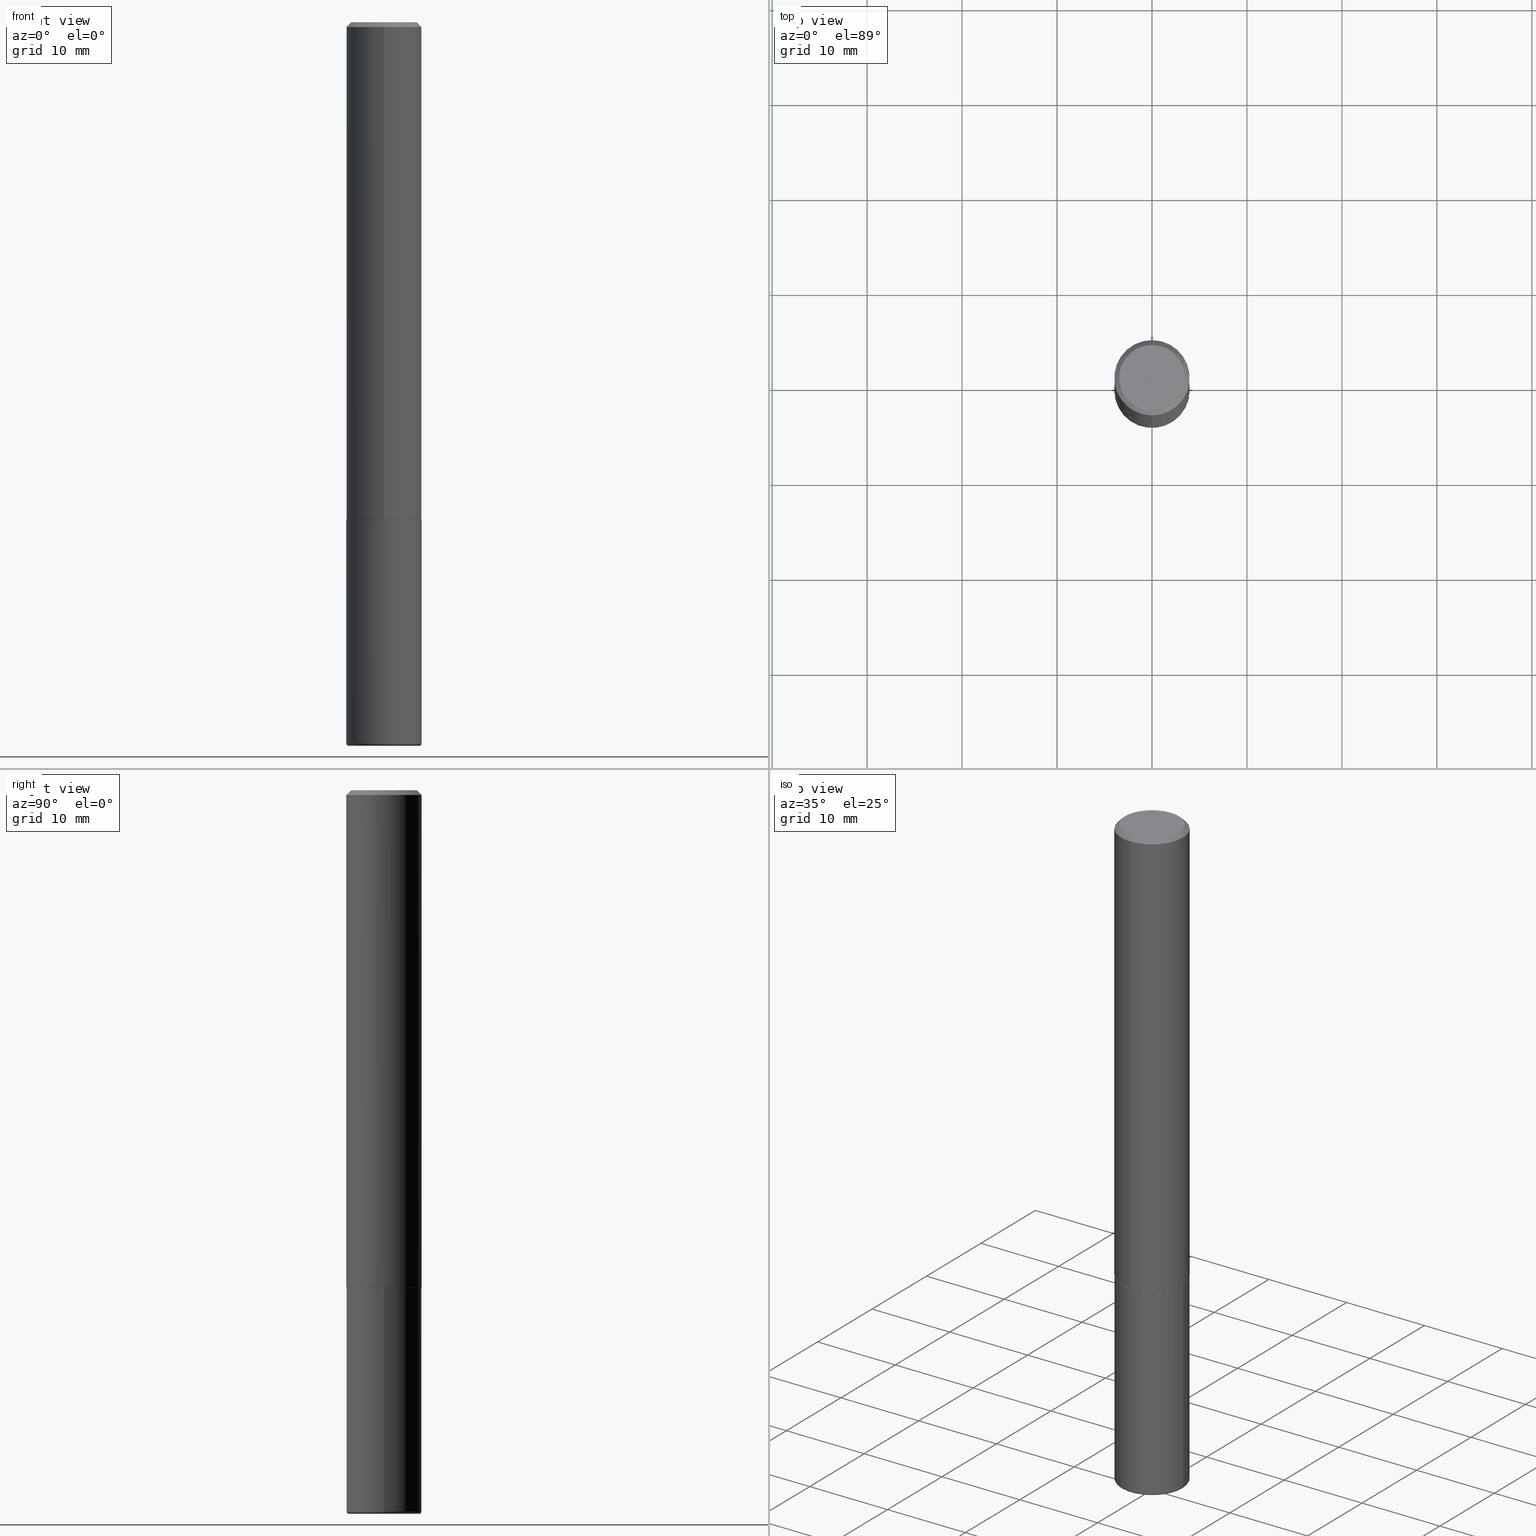
[diagram: canonical four-view strip — front | top / right | iso, engineering-drawing reading convention]
A machine part, canonical four-view strip (front | top / right | iso — engineering-drawing reading convention). The complete STEP part file that produces these views, byte-faithful:
ISO-10303-21;
HEADER;
FILE_DESCRIPTION (( 'STEP AP203' ),
    '1' );
FILE_NAME ('37453.STEP',
    '2024-03-02T01:37:50',
    ( '' ),
    ( '' ),
    'SwSTEP 2.0',
    'SolidWorks 2023',
    '' );
FILE_SCHEMA (( 'CONFIG_CONTROL_DESIGN' ));
ENDSEC;

DATA;
#1 = CARTESIAN_POINT ( 'NONE',  ( 5.043175630159490166E-29, -7.202044912408575044E-15, -2.062500000000000444 ) ) ;
#2 = EDGE_CURVE ( 'NONE', #327, #32, #267, .T. ) ;
#3 = CARTESIAN_POINT ( 'NONE',  ( 0.1562500000000000278, -1.153061712152948940E-14, -2.990000000000000657 ) ) ;
#4 = EDGE_CURVE ( 'NONE', #327, #115, #227, .T. ) ;
#5 = FACE_OUTER_BOUND ( 'NONE', #231, .T. ) ;
#6 = AXIS2_PLACEMENT_3D ( 'NONE', #92, #224, #94 ) ;
#7 = APPROVAL_PERSON_ORGANIZATION ( #120, #365, #189 ) ;
#8 = VERTEX_POINT ( 'NONE', #60 ) ;
#9 = ORIENTED_EDGE ( 'NONE', *, *, #188, .F. ) ;
#10 = ORIENTED_EDGE ( 'NONE', *, *, #360, .T. ) ;
#11 = ADVANCED_FACE ( 'NONE', ( #166 ), #22, .T. ) ;
#12 = ORIENTED_EDGE ( 'NONE', *, *, #67, .F. ) ;
#13 = LOCAL_TIME ( 20, 37, 50.00000000000000000, #38 ) ;
#14 = ADVANCED_FACE ( 'NONE', ( #5 ), #388, .T. ) ;
#15 = LINE ( 'NONE', #213, #330 ) ;
#16 = CC_DESIGN_PERSON_AND_ORGANIZATION_ASSIGNMENT ( #131, #335, ( #400 ) ) ;
#17 = ADVANCED_FACE ( 'NONE', ( #128 ), #159, .T. ) ;
#18 = DIRECTION ( 'NONE',  ( -2.445176063107630933E-29, 3.491900563592034843E-15, 1.000000000000000000 ) ) ;
#19 = DIRECTION ( 'NONE',  ( 7.105427357601001859E-15, 1.000000000000000000, -3.491481338843145583E-15 ) ) ;
#20 = CARTESIAN_POINT ( 'NONE',  ( -0.1562500000000000000, 1.110223024625156540E-15, -7.685836078523291160E-30 ) ) ;
#21 = DIRECTION ( 'NONE',  ( -6.982962677686265922E-15, -1.000000000000000000, 3.519288880726909138E-15 ) ) ;
#22 = CONICAL_SURFACE ( 'NONE', #417, 0.1562500000000000000, 0.7853981633974469467 ) ;
#23 = TOROIDAL_SURFACE ( 'NONE', #51, 0.1462500000000000189, 0.01000000000000008174 ) ;
#24 = DIRECTION ( 'NONE',  ( -2.445176063107630933E-29, 3.491900563592034843E-15, 1.000000000000000000 ) ) ;
#25 = ORIENTED_EDGE ( 'NONE', *, *, #401, .F. ) ;
#26 = DIRECTION ( 'NONE',  ( -2.445468806185136877E-29, 3.491481338843145188E-15, 1.000000000000000000 ) ) ;
#27 = COORDINATED_UNIVERSAL_TIME_OFFSET ( 5, 0, .BEHIND. ) ;
#28 =( NAMED_UNIT ( * ) SI_UNIT ( $, .STERADIAN. ) SOLID_ANGLE_UNIT ( ) );
#29 = DIRECTION ( 'NONE',  ( 1.000000000000000000, -6.982962677686269077E-15, 0.000000000000000000 ) ) ;
#30 =( NAMED_UNIT ( * ) PLANE_ANGLE_UNIT ( ) SI_UNIT ( $, .RADIAN. ) );
#31 = APPROVAL_STATUS ( 'not_yet_approved' ) ;
#32 = VERTEX_POINT ( 'NONE', #3 ) ;
#33 = DIRECTION ( 'NONE',  ( 1.000000000000000000, -6.982962677686262766E-15, 0.000000000000000000 ) ) ;
#34 = SHAPE_DEFINITION_REPRESENTATION ( #250, #269 ) ;
#35 = DIRECTION ( 'NONE',  ( -6.982962677686265922E-15, -1.000000000000000000, 3.519288880726909138E-15 ) ) ;
#36 = APPROVAL ( #31, 'UNSPECIFIED' ) ;
#37 = ORIENTED_EDGE ( 'NONE', *, *, #229, .F. ) ;
#38 = COORDINATED_UNIVERSAL_TIME_OFFSET ( 5, 0, .BEHIND. ) ;
#39 = CARTESIAN_POINT ( 'NONE',  ( 0.000000000000000000, 0.000000000000000000, 0.000000000000000000 ) ) ;
#40 = ORIENTED_EDGE ( 'NONE', *, *, #198, .T. ) ;
#41 = APPLICATION_CONTEXT ( 'configuration controlled 3d designs of mechanical parts and assemblies' ) ;
#42 = DATE_AND_TIME ( #257, #201 ) ;
#43 = ORIENTED_EDGE ( 'NONE', *, *, #127, .F. ) ;
#44 = ORIENTED_EDGE ( 'NONE', *, *, #235, .F. ) ;
#45 = AXIS2_PLACEMENT_3D ( 'NONE', #116, #383, #349 ) ;
#46 = CIRCLE ( 'NONE', #111, 0.1362500000000001210 ) ;
#47 = VECTOR ( 'NONE', #185, 39.37007874015748143 ) ;
#48 = DIRECTION ( 'NONE',  ( 6.982962677686265133E-15, 1.000000000000000000, -3.496765431890256920E-15 ) ) ;
#49 = AXIS2_PLACEMENT_3D ( 'NONE', #190, #161, #133 ) ;
#50 = CARTESIAN_POINT ( 'NONE',  ( 5.043175630159489045E-29, -7.202044912408573467E-15, -2.062500000000000000 ) ) ;
#51 = AXIS2_PLACEMENT_3D ( 'NONE', #88, #282, #377 ) ;
#52 = DIRECTION ( 'NONE',  ( -2.445176063107630933E-29, 3.491900563592034843E-15, 1.000000000000000000 ) ) ;
#53 = CARTESIAN_POINT ( 'NONE',  ( -0.1562500000000000278, -9.329306178515851319E-15, -2.990000000000000657 ) ) ;
#54 = CARTESIAN_POINT ( 'NONE',  ( 2.190428889620163364E-45, -3.128101894001013777E-31, -8.958164292007245599E-17 ) ) ;
#55 = DIRECTION ( 'NONE',  ( -6.982962677686265922E-15, -1.000000000000000000, 3.491900563592034843E-15 ) ) ;
#56 = MECHANICAL_CONTEXT ( 'NONE', #41, 'mechanical' ) ;
#57 = EDGE_LOOP ( 'NONE', ( #43, #40, #153, #150 ) ) ;
#58 = DIRECTION ( 'NONE',  ( 1.000000000000000000, -6.982962677686262766E-15, 0.000000000000000000 ) ) ;
#59 = EDGE_CURVE ( 'NONE', #264, #71, #89, .T. ) ;
#60 = CARTESIAN_POINT ( 'NONE',  ( -1.003347832174086672E-15, -0.1362500000000001210, 3.861898088693426789E-16 ) ) ;
#61 = ADVANCED_FACE ( 'NONE', ( #418 ), #246, .T. ) ;
#62 = CALENDAR_DATE ( 2024, 1, 3 ) ;
#63 = LINE ( 'NONE', #193, #64 ) ;
#64 = VECTOR ( 'NONE', #291, 39.37007874015748143 ) ;
#65 = CC_DESIGN_SECURITY_CLASSIFICATION ( #410, ( #400 ) ) ;
#66 = DIRECTION ( 'NONE',  ( -6.982962677686265922E-15, -1.000000000000000000, 3.491900563592035238E-15 ) ) ;
#67 = EDGE_CURVE ( 'NONE', #301, #108, #63, .T. ) ;
#68 = EDGE_LOOP ( 'NONE', ( #329, #182, #163, #212 ) ) ;
#69 = ORIENTED_EDGE ( 'NONE', *, *, #160, .F. ) ;
#70 =( GEOMETRIC_REPRESENTATION_CONTEXT ( 3 ) GLOBAL_UNCERTAINTY_ASSIGNED_CONTEXT ( ( #350 ) ) GLOBAL_UNIT_ASSIGNED_CONTEXT ( ( #147, #30, #28 ) ) REPRESENTATION_CONTEXT ( 'NONE', 'WORKASPACE' ) );
#71 = VERTEX_POINT ( 'NONE', #321 ) ;
#72 = ADVANCED_FACE ( 'NONE', ( #262 ), #392, .T. ) ;
#73 = DATE_AND_TIME ( #367, #13 ) ;
#74 = EDGE_CURVE ( 'NONE', #142, #108, #255, .T. ) ;
#75 = AXIS2_PLACEMENT_3D ( 'NONE', #54, #274, #243 ) ;
#76 = LOCAL_TIME ( 20, 37, 50.00000000000000000, #27 ) ;
#77 = PERSON_AND_ORGANIZATION ( #273, #124 ) ;
#78 = DIRECTION ( 'NONE',  ( 2.445176063107630933E-29, -3.491900563592034843E-15, -1.000000000000000000 ) ) ;
#79 = CARTESIAN_POINT ( 'NONE',  ( 5.043779412756844791E-29, -7.201180261363988578E-15, -2.062500000000000000 ) ) ;
#80 = AXIS2_PLACEMENT_3D ( 'NONE', #148, #18, #415 ) ;
#81 = EDGE_CURVE ( 'NONE', #375, #8, #226, .T. ) ;
#82 = DIRECTION ( 'NONE',  ( -1.000000000000000000, 7.105427357601074434E-15, 0.000000000000000000 ) ) ;
#83 = DIRECTION ( 'NONE',  ( -6.982962677686265922E-15, -1.000000000000000000, 3.491900563592034843E-15 ) ) ;
#84 = DIRECTION ( 'NONE',  ( 2.438088387897960049E-29, -3.491481338843145188E-15, -1.000000000000000000 ) ) ;
#85 = PRODUCT ( '37453', '37453', '', ( #56 ) ) ;
#86 = LINE ( 'NONE', #277, #385 ) ;
#87 = ADVANCED_FACE ( 'NONE', ( #379 ), #409, .T. ) ;
#88 = CARTESIAN_POINT ( 'NONE',  ( 7.311951730493558245E-29, -1.043952920314100628E-14, -2.990000000000000213 ) ) ;
#89 = CIRCLE ( 'NONE', #260, 0.1562500000000000000 ) ;
#90 = CC_DESIGN_DATE_AND_TIME_ASSIGNMENT ( #286, #413, ( #172 ) ) ;
#91 = PRODUCT_RELATED_PRODUCT_CATEGORY ( 'detail', '', ( #85 ) ) ;
#92 = CARTESIAN_POINT ( 'NONE',  ( 0.000000000000000000, 0.000000000000000000, 0.000000000000000000 ) ) ;
#93 = FACE_OUTER_BOUND ( 'NONE', #368, .T. ) ;
#94 = DIRECTION ( 'NONE',  ( -6.982962677686265922E-15, -1.000000000000000000, 3.491900563592035238E-15 ) ) ;
#95 = CARTESIAN_POINT ( 'NONE',  ( 0.000000000000000000, 0.000000000000000000, 0.000000000000000000 ) ) ;
#96 = CIRCLE ( 'NONE', #293, 0.1562500000000000000 ) ;
#97 = CIRCLE ( 'NONE', #247, 0.1562500000000002776 ) ;
#98 = EDGE_LOOP ( 'NONE', ( #244, #298, #138, #348 ) ) ;
#99 = DIRECTION ( 'NONE',  ( 2.445176063107630933E-29, -3.491900563592034843E-15, -1.000000000000000000 ) ) ;
#100 = ORIENTED_EDGE ( 'NONE', *, *, #127, .T. ) ;
#101 = LINE ( 'NONE', #223, #132 ) ;
#102 = EDGE_CURVE ( 'NONE', #167, #264, #314, .T. ) ;
#103 = CARTESIAN_POINT ( 'NONE',  ( 4.890352126215269679E-31, -6.983801127184080238E-17, -0.02000000000000003511 ) ) ;
#104 = EDGE_LOOP ( 'NONE', ( #25, #241 ) ) ;
#105 = SECURITY_CLASSIFICATION_LEVEL ( 'unclassified' ) ;
#106 = AXIS2_PLACEMENT_3D ( 'NONE', #194, #162, #129 ) ;
#107 = CC_DESIGN_PERSON_AND_ORGANIZATION_ASSIGNMENT ( #355, #384, ( #172 ) ) ;
#108 = VERTEX_POINT ( 'NONE', #285 ) ;
#109 = CC_DESIGN_DATE_AND_TIME_ASSIGNMENT ( #73, #333, ( #410 ) ) ;
#110 = CLOSED_SHELL ( 'NONE', ( #177, #204, #11, #352, #14, #61, #119, #146 ) ) ;
#111 = AXIS2_PLACEMENT_3D ( 'NONE', #346, #52, #55 ) ;
#112 = ORIENTED_EDGE ( 'NONE', *, *, #214, .T. ) ;
#113 = DIRECTION ( 'NONE',  ( -2.445468806185136597E-29, 3.491481338843145583E-15, 1.000000000000000000 ) ) ;
#114 = DIRECTION ( 'NONE',  ( -2.445176063107630933E-29, 3.491900563592034843E-15, 1.000000000000000000 ) ) ;
#115 = VERTEX_POINT ( 'NONE', #347 ) ;
#116 = CARTESIAN_POINT ( 'NONE',  ( 7.336406418555409790E-29, -1.047444401652943635E-14, -3.000000000000000444 ) ) ;
#117 = CARTESIAN_POINT ( 'NONE',  ( 7.336406418555409790E-29, -1.047444401652943635E-14, -3.000000000000000444 ) ) ;
#118 = CARTESIAN_POINT ( 'NONE',  ( 5.043175630159490166E-29, -7.202044912408575044E-15, -2.062500000000000444 ) ) ;
#119 = ADVANCED_FACE ( 'NONE', ( #374 ), #340, .F. ) ;
#120 = PERSON_AND_ORGANIZATION ( #273, #124 ) ;
#121 = EDGE_LOOP ( 'NONE', ( #135, #100, #208, #263 ) ) ;
#122 = APPROVAL_ROLE ( '' ) ;
#123 = AXIS2_PLACEMENT_3D ( 'NONE', #1, #322, #225 ) ;
#124 = ORGANIZATION ( 'UNSPECIFIED', 'UNSPECIFIED', '' ) ;
#125 = CARTESIAN_POINT ( 'NONE',  ( 4.890352126215269679E-31, -6.983801127184080238E-17, -0.02000000000000003511 ) ) ;
#126 = DIRECTION ( 'NONE',  ( -6.982962677686266711E-15, -1.000000000000000000, 3.491481338843145583E-15 ) ) ;
#127 = EDGE_CURVE ( 'NONE', #402, #361, #101, .T. ) ;
#128 = FACE_OUTER_BOUND ( 'NONE', #68, .T. ) ;
#129 = DIRECTION ( 'NONE',  ( -6.982962677686265922E-15, -1.000000000000000000, 3.496765431890250609E-15 ) ) ;
#130 = ORIENTED_EDGE ( 'NONE', *, *, #67, .T. ) ;
#131 = PERSON_AND_ORGANIZATION ( #273, #124 ) ;
#132 = VECTOR ( 'NONE', #196, 39.37007874015748854 ) ;
#133 = DIRECTION ( 'NONE',  ( 1.000000000000000000, -6.982962677686266711E-15, 4.876176775795936353E-29 ) ) ;
#134 = AXIS2_PLACEMENT_3D ( 'NONE', #103, #210, #411 ) ;
#135 = ORIENTED_EDGE ( 'NONE', *, *, #401, .T. ) ;
#136 = EDGE_CURVE ( 'NONE', #167, #32, #371, .T. ) ;
#137 = ORIENTED_EDGE ( 'NONE', *, *, #4, .F. ) ;
#138 = ORIENTED_EDGE ( 'NONE', *, *, #296, .F. ) ;
#139 = AXIS2_PLACEMENT_3D ( 'NONE', #259, #310, #283 ) ;
#140 = AXIS2_PLACEMENT_3D ( 'NONE', #276, #248, #58 ) ;
#141 = APPROVAL_DATE_TIME ( #42, #36 ) ;
#142 = VERTEX_POINT ( 'NONE', #290 ) ;
#143 = CARTESIAN_POINT ( 'NONE',  ( 0.1462500000000000189, -1.149570230814105460E-14, -3.000000000000000444 ) ) ;
#144 = AXIS2_PLACEMENT_3D ( 'NONE', #118, #249, #381 ) ;
#145 = CIRCLE ( 'NONE', #279, 0.01000000000000006439 ) ;
#146 = ADVANCED_FACE ( 'NONE', ( #357 ), #393, .F. ) ;
#147 =( CONVERSION_BASED_UNIT ( 'INCH', #183 ) LENGTH_UNIT ( ) NAMED_UNIT ( #359 ) );
#148 = CARTESIAN_POINT ( 'NONE',  ( 4.890352126215269679E-31, -6.983801127184080238E-17, -0.02000000000000003511 ) ) ;
#149 = FACE_OUTER_BOUND ( 'NONE', #232, .T. ) ;
#150 = ORIENTED_EDGE ( 'NONE', *, *, #304, .F. ) ;
#151 = CARTESIAN_POINT ( 'NONE',  ( 0.1562500000000000000, -1.091087918388479174E-15, 7.619026212181150377E-30 ) ) ;
#152 = DIRECTION ( 'NONE',  ( 1.000000000000000000, -6.982962677686269077E-15, 0.000000000000000000 ) ) ;
#153 = ORIENTED_EDGE ( 'NONE', *, *, #412, .T. ) ;
#154 = DIRECTION ( 'NONE',  ( 4.937700262164540942E-15, 0.7071067811865441310, -0.7071067811865509034 ) ) ;
#155 = DIRECTION ( 'NONE',  ( 6.982962677686265922E-15, 1.000000000000000000, -3.491900563592034843E-15 ) ) ;
#156 = TOROIDAL_SURFACE ( 'NONE', #395, 0.1462500000000000189, 0.01000000000000008174 ) ;
#157 = AXIS2_PLACEMENT_3D ( 'NONE', #184, #114, #21 ) ;
#158 = CALENDAR_DATE ( 2024, 1, 3 ) ;
#159 = CYLINDRICAL_SURFACE ( 'NONE', #49, 0.1562500000000000000 ) ;
#160 = EDGE_CURVE ( 'NONE', #71, #264, #96, .T. ) ;
#161 = DIRECTION ( 'NONE',  ( -2.445468806185136597E-29, 3.491481338843145583E-15, 1.000000000000000000 ) ) ;
#162 = DIRECTION ( 'NONE',  ( -2.445176063107630933E-29, 3.491900563592034843E-15, 1.000000000000000000 ) ) ;
#163 = ORIENTED_EDGE ( 'NONE', *, *, #238, .T. ) ;
#164 = CARTESIAN_POINT ( 'NONE',  ( 7.311951730493559366E-29, -1.043952920314100786E-14, -2.990000000000000657 ) ) ;
#165 = DATE_AND_TIME ( #387, #294 ) ;
#166 = FACE_OUTER_BOUND ( 'NONE', #406, .T. ) ;
#167 = VERTEX_POINT ( 'NONE', #53 ) ;
#168 = EDGE_CURVE ( 'NONE', #361, #142, #86, .T. ) ;
#169 = VECTOR ( 'NONE', #218, 39.37007874015748143 ) ;
#170 = CIRCLE ( 'NONE', #157, 0.1552499999999999991 ) ;
#171 = ORIENTED_EDGE ( 'NONE', *, *, #168, .T. ) ;
#172 = PRODUCT_DEFINITION ( 'UNKNOWN', '', #400, #315 ) ;
#173 = ORIENTED_EDGE ( 'NONE', *, *, #168, .F. ) ;
#174 = ORIENTED_EDGE ( 'NONE', *, *, #59, .T. ) ;
#175 = AXIS2_PLACEMENT_3D ( 'NONE', #95, #396, #338 ) ;
#176 =( LENGTH_UNIT ( ) NAMED_UNIT ( * ) SI_UNIT ( $, .METRE. ) );
#177 = ADVANCED_FACE ( 'NONE', ( #280 ), #399, .T. ) ;
#178 = APPLICATION_PROTOCOL_DEFINITION ( 'international standard', 'config_control_design', 1994, #205 ) ;
#179 = LINE ( 'NONE', #299, #288 ) ;
#180 = AXIS2_PLACEMENT_3D ( 'NONE', #325, #353, #35 ) ;
#181 = AXIS2_PLACEMENT_3D ( 'NONE', #117, #113, #404 ) ;
#182 = ORIENTED_EDGE ( 'NONE', *, *, #136, .T. ) ;
#183 = LENGTH_MEASURE_WITH_UNIT ( LENGTH_MEASURE( 0.02539999999999999897 ), #176 );
#184 = CARTESIAN_POINT ( 'NONE',  ( 5.043175630159490166E-29, -7.202044912408575044E-15, -2.062500000000000444 ) ) ;
#185 = DIRECTION ( 'NONE',  ( -2.445468806185136877E-29, 3.491481338843145188E-15, 1.000000000000000000 ) ) ;
#186 = CIRCLE ( 'NONE', #140, 0.1562500000000000000 ) ;
#187 = MANIFOLD_SOLID_BREP ( 'Body-Move/Copy2[1]', #320 ) ;
#188 = EDGE_CURVE ( 'NONE', #8, #108, #253, .T. ) ;
#189 = APPROVAL_ROLE ( '' ) ;
#190 = CARTESIAN_POINT ( 'NONE',  ( 0.000000000000000000, 0.000000000000000000, 0.000000000000000000 ) ) ;
#191 = VECTOR ( 'NONE', #26, 39.37007874015748143 ) ;
#192 = CC_DESIGN_APPROVAL ( #365, ( #400 ) ) ;
#193 = CARTESIAN_POINT ( 'NONE',  ( -1.091087918388479962E-15, -0.1562500000000001388, 5.456094630612559989E-16 ) ) ;
#194 = CARTESIAN_POINT ( 'NONE',  ( 5.040730454096381281E-29, -7.198553011844980434E-15, -2.061500000000000110 ) ) ;
#195 = ORIENTED_EDGE ( 'NONE', *, *, #2, .T. ) ;
#196 = DIRECTION ( 'NONE',  ( 5.024295867787889629E-15, 0.7071067811865257013, 0.7071067811865691111 ) ) ;
#197 = DIRECTION ( 'NONE',  ( 6.982962677686265133E-15, 1.000000000000000000, -3.496765431890256920E-15 ) ) ;
#198 = EDGE_CURVE ( 'NONE', #402, #345, #300, .T. ) ;
#199 = ORIENTED_EDGE ( 'NONE', *, *, #81, .T. ) ;
#200 = ORIENTED_EDGE ( 'NONE', *, *, #235, .T. ) ;
#201 = LOCAL_TIME ( 20, 37, 50.00000000000000000, #217 ) ;
#202 = ORIENTED_EDGE ( 'NONE', *, *, #296, .T. ) ;
#203 = ORIENTED_EDGE ( 'NONE', *, *, #339, .F. ) ;
#204 = ADVANCED_FACE ( 'NONE', ( #93 ), #326, .T. ) ;
#205 = APPLICATION_CONTEXT ( 'configuration controlled 3d designs of mechanical parts and assemblies' ) ;
#206 = APPROVAL_ROLE ( '' ) ;
#207 = PERSON_AND_ORGANIZATION_ROLE ( 'design_owner' ) ;
#208 = ORIENTED_EDGE ( 'NONE', *, *, #214, .F. ) ;
#209 = DIRECTION ( 'NONE',  ( -2.445468806185136597E-29, 3.491481338843145583E-15, 1.000000000000000000 ) ) ;
#210 = DIRECTION ( 'NONE',  ( -2.445176063107630933E-29, 3.491900563592034843E-15, 1.000000000000000000 ) ) ;
#211 = CIRCLE ( 'NONE', #134, 0.1562500000000000000 ) ;
#212 = ORIENTED_EDGE ( 'NONE', *, *, #59, .F. ) ;
#213 = CARTESIAN_POINT ( 'NONE',  ( 1.091087918388479568E-15, 0.1562499999999999445, -0.02000000000000057981 ) ) ;
#214 = EDGE_CURVE ( 'NONE', #301, #361, #364, .T. ) ;
#215 = DIRECTION ( 'NONE',  ( -6.982962677686265922E-15, -1.000000000000000000, 3.496765431890250609E-15 ) ) ;
#216 = FACE_OUTER_BOUND ( 'NONE', #312, .T. ) ;
#217 = COORDINATED_UNIVERSAL_TIME_OFFSET ( 5, 0, .BEHIND. ) ;
#218 = DIRECTION ( 'NONE',  ( -4.851104656540957175E-15, -0.7071067811865490160, -0.7071067811865460184 ) ) ;
#219 = CC_DESIGN_APPROVAL ( #36, ( #410 ) ) ;
#220 = ADVANCED_FACE ( 'NONE', ( #297 ), #156, .T. ) ;
#221 = APPROVAL_STATUS ( 'not_yet_approved' ) ;
#222 = CARTESIAN_POINT ( 'NONE',  ( 7.336406418555409790E-29, -1.047444401652943635E-14, -3.000000000000000444 ) ) ;
#223 = CARTESIAN_POINT ( 'NONE',  ( 1.103117597267605822E-15, 0.1552499999999928104, -2.062500000000000888 ) ) ;
#224 = DIRECTION ( 'NONE',  ( -2.445176063107630933E-29, 3.491900563592034843E-15, 1.000000000000000000 ) ) ;
#225 = DIRECTION ( 'NONE',  ( -6.982962677686265922E-15, -1.000000000000000000, 3.519288880726909138E-15 ) ) ;
#226 = CIRCLE ( 'NONE', #75, 0.1362500000000001210 ) ;
#227 = CIRCLE ( 'NONE', #390, 0.1462500000000000189 ) ;
#228 = ORIENTED_EDGE ( 'NONE', *, *, #136, .F. ) ;
#229 = EDGE_CURVE ( 'NONE', #108, #142, #211, .T. ) ;
#230 = APPROVAL ( #284, 'UNSPECIFIED' ) ;
#231 = EDGE_LOOP ( 'NONE', ( #173, #363, #130, #292 ) ) ;
#232 = EDGE_LOOP ( 'NONE', ( #270, #174 ) ) ;
#233 = PERSON_AND_ORGANIZATION_ROLE ( 'classification_officer' ) ;
#234 = ORIENTED_EDGE ( 'NONE', *, *, #102, .T. ) ;
#235 = EDGE_CURVE ( 'NONE', #115, #327, #376, .T. ) ;
#236 = CARTESIAN_POINT ( 'NONE',  ( 7.311951730493558245E-29, -1.043952920314100628E-14, -2.990000000000000213 ) ) ;
#237 = AXIS2_PLACEMENT_3D ( 'NONE', #164, #324, #33 ) ;
#238 = EDGE_CURVE ( 'NONE', #32, #71, #380, .T. ) ;
#239 = ORIENTED_EDGE ( 'NONE', *, *, #188, .T. ) ;
#240 = CARTESIAN_POINT ( 'NONE',  ( 4.890352126215269679E-31, -6.983801127184080238E-17, -0.02000000000000003511 ) ) ;
#241 = ORIENTED_EDGE ( 'NONE', *, *, #198, .F. ) ;
#242 = DIRECTION ( 'NONE',  ( 1.000000000000000000, -6.982962677686272233E-15, 4.883557194083114583E-29 ) ) ;
#243 = DIRECTION ( 'NONE',  ( -6.982962677686265922E-15, -1.000000000000000000, 3.491900563592034843E-15 ) ) ;
#244 = ORIENTED_EDGE ( 'NONE', *, *, #4, .T. ) ;
#245 = DIRECTION ( 'NONE',  ( -1.000000000000000000, 6.982962677686265922E-15, -4.876176775795935793E-29 ) ) ;
#246 = CONICAL_SURFACE ( 'NONE', #180, 0.1552499999999999991, 0.7853981633974141952 ) ;
#247 = AXIS2_PLACEMENT_3D ( 'NONE', #308, #24, #215 ) ;
#248 = DIRECTION ( 'NONE',  ( -2.445468806185136597E-29, 3.491481338843145583E-15, 1.000000000000000000 ) ) ;
#249 = DIRECTION ( 'NONE',  ( -2.445176063107630933E-29, 3.491900563592034843E-15, 1.000000000000000000 ) ) ;
#250 = PRODUCT_DEFINITION_SHAPE ( 'NONE', 'NONE',  #172 ) ;
#251 = APPROVAL_DATE_TIME ( #289, #365 ) ;
#252 = CARTESIAN_POINT ( 'NONE',  ( 1.106670310946407312E-15, 0.1552499999999928104, -2.062500000000000888 ) ) ;
#253 = LINE ( 'NONE', #382, #169 ) ;
#254 = APPROVAL_DATE_TIME ( #165, #230 ) ;
#255 = CIRCLE ( 'NONE', #80, 0.1562500000000000000 ) ;
#256 = DIRECTION ( 'NONE',  ( 1.000000000000000000, -6.982962677686270655E-15, 0.000000000000000000 ) ) ;
#257 = CALENDAR_DATE ( 2024, 1, 3 ) ;
#258 = CARTESIAN_POINT ( 'NONE',  ( 0.1462500000000000189, -1.146078749475262295E-14, -2.990000000000000213 ) ) ;
#259 = CARTESIAN_POINT ( 'NONE',  ( 0.000000000000000000, 0.000000000000000000, 0.000000000000000000 ) ) ;
#260 = AXIS2_PLACEMENT_3D ( 'NONE', #351, #319, #29 ) ;
#261 = AXIS2_PLACEMENT_3D ( 'NONE', #240, #78, #48 ) ;
#262 = FACE_OUTER_BOUND ( 'NONE', #394, .T. ) ;
#263 = ORIENTED_EDGE ( 'NONE', *, *, #412, .F. ) ;
#264 = VERTEX_POINT ( 'NONE', #303 ) ;
#265 = EDGE_LOOP ( 'NONE', ( #203, #200, #195, #228 ) ) ;
#266 = CARTESIAN_POINT ( 'NONE',  ( 9.514286648347545493E-16, 0.1362500000000001210, -5.205622732494513937E-16 ) ) ;
#267 = CIRCLE ( 'NONE', #336, 0.01000000000000006439 ) ;
#268 = ADVANCED_FACE ( 'NONE', ( #149 ), #305, .F. ) ;
#269 = ADVANCED_BREP_SHAPE_REPRESENTATION ( '37453', ( #187, #331, #175 ), #70 ) ;
#270 = ORIENTED_EDGE ( 'NONE', *, *, #160, .T. ) ;
#271 = CARTESIAN_POINT ( 'NONE',  ( -0.1462500000000000189, -9.400360452091859823E-15, -2.990000000000000213 ) ) ;
#272 = EDGE_LOOP ( 'NONE', ( #137, #44 ) ) ;
#273 = PERSON ( 'UNSPECIFIED', 'UNSPECIFIED', 'UNSPECIFIED', ('UNSPECIFIED'), ('UNSPECIFIED'), ('UNSPECIFIED') ) ;
#274 = DIRECTION ( 'NONE',  ( -2.445176063107630933E-29, 3.491900563592034843E-15, 1.000000000000000000 ) ) ;
#275 = PERSON_AND_ORGANIZATION ( #273, #124 ) ;
#276 = CARTESIAN_POINT ( 'NONE',  ( 7.311951730493559366E-29, -1.043952920314100786E-14, -2.990000000000000657 ) ) ;
#277 = CARTESIAN_POINT ( 'NONE',  ( 1.110223024625157329E-15, 0.1562500000000001388, -5.456094630612559989E-16 ) ) ;
#278 = AXIS2_PLACEMENT_3D ( 'NONE', #266, #397, #155 ) ;
#279 = AXIS2_PLACEMENT_3D ( 'NONE', #271, #19, #82 ) ;
#280 = FACE_OUTER_BOUND ( 'NONE', #121, .T. ) ;
#281 = ORIENTED_EDGE ( 'NONE', *, *, #238, .F. ) ;
#282 = DIRECTION ( 'NONE',  ( -2.445468806185136597E-29, 3.491481338843145583E-15, 1.000000000000000000 ) ) ;
#283 = DIRECTION ( 'NONE',  ( 1.000000000000000000, -6.982962677686266711E-15, 4.876176775795936353E-29 ) ) ;
#284 = APPROVAL_STATUS ( 'not_yet_approved' ) ;
#285 = CARTESIAN_POINT ( 'NONE',  ( -1.071952812151801215E-15, -0.1562500000000000833, -0.01999999999999948694 ) ) ;
#286 = DATE_AND_TIME ( #62, #76 ) ;
#287 = AXIS2_PLACEMENT_3D ( 'NONE', #39, #354, #66 ) ;
#288 = VECTOR ( 'NONE', #343, 39.37007874015748854 ) ;
#289 = DATE_AND_TIME ( #158, #342 ) ;
#290 = CARTESIAN_POINT ( 'NONE',  ( 1.091087918388479568E-15, 0.1562499999999999445, -0.02000000000000057981 ) ) ;
#291 = DIRECTION ( 'NONE',  ( -2.445176063107631214E-29, 3.491900563592034843E-15, 1.000000000000000000 ) ) ;
#292 = ORIENTED_EDGE ( 'NONE', *, *, #74, .F. ) ;
#293 = AXIS2_PLACEMENT_3D ( 'NONE', #378, #209, #152 ) ;
#294 = LOCAL_TIME ( 20, 37, 50.00000000000000000, #389 ) ;
#295 = ORIENTED_EDGE ( 'NONE', *, *, #229, .T. ) ;
#296 = EDGE_CURVE ( 'NONE', #32, #167, #186, .T. ) ;
#297 = FACE_OUTER_BOUND ( 'NONE', #98, .T. ) ;
#298 = ORIENTED_EDGE ( 'NONE', *, *, #339, .T. ) ;
#299 = CARTESIAN_POINT ( 'NONE',  ( -1.084104955710742475E-15, -0.1552500000000072156, -2.062500000000000000 ) ) ;
#300 = CIRCLE ( 'NONE', #123, 0.1552499999999999991 ) ;
#301 = VERTEX_POINT ( 'NONE', #373 ) ;
#302 = CC_DESIGN_APPROVAL ( #230, ( #172 ) ) ;
#303 = CARTESIAN_POINT ( 'NONE',  ( -0.1562500000000000000, -7.710131707627340889E-15, -2.062500000000000000 ) ) ;
#304 = EDGE_CURVE ( 'NONE', #361, #301, #97, .T. ) ;
#305 = PLANE ( 'NONE',  #309 ) ;
#306 = ORIENTED_EDGE ( 'NONE', *, *, #370, .F. ) ;
#307 = CARTESIAN_POINT ( 'NONE',  ( 1.110223024625183362E-15, 0.1562499999999930611, -2.061500000000000554 ) ) ;
#308 = CARTESIAN_POINT ( 'NONE',  ( 5.040730454096381281E-29, -7.198553011844980434E-15, -2.061500000000000110 ) ) ;
#309 = AXIS2_PLACEMENT_3D ( 'NONE', #79, #84, #245 ) ;
#310 = DIRECTION ( 'NONE',  ( -2.445468806185136597E-29, 3.491481338843145583E-15, 1.000000000000000000 ) ) ;
#311 = PERSON_AND_ORGANIZATION ( #273, #124 ) ;
#312 = EDGE_LOOP ( 'NONE', ( #9, #323, #10, #356 ) ) ;
#313 = CC_DESIGN_PERSON_AND_ORGANIZATION_ASSIGNMENT ( #77, #207, ( #85 ) ) ;
#314 = LINE ( 'NONE', #20, #191 ) ;
#315 = DESIGN_CONTEXT ( 'detailed design', #205, 'design' ) ;
#316 = DIRECTION ( 'NONE',  ( 1.000000000000000000, -6.982962677686287221E-15, 0.000000000000000000 ) ) ;
#317 = APPLICATION_PROTOCOL_DEFINITION ( 'international standard', 'config_control_design', 1994, #41 ) ;
#318 = COORDINATED_UNIVERSAL_TIME_OFFSET ( 5, 0, .BEHIND. ) ;
#319 = DIRECTION ( 'NONE',  ( -2.445468806185136597E-29, 3.491481338843145583E-15, 1.000000000000000000 ) ) ;
#320 = CLOSED_SHELL ( 'NONE', ( #72, #220, #268, #17, #337, #87 ) ) ;
#321 = CARTESIAN_POINT ( 'NONE',  ( 0.1562500000000000000, -8.292268179752468540E-15, -2.062500000000000000 ) ) ;
#322 = DIRECTION ( 'NONE',  ( -2.445176063107630933E-29, 3.491900563592034843E-15, 1.000000000000000000 ) ) ;
#323 = ORIENTED_EDGE ( 'NONE', *, *, #81, .F. ) ;
#324 = DIRECTION ( 'NONE',  ( -2.445468806185136597E-29, 3.491481338843145583E-15, 1.000000000000000000 ) ) ;
#325 = CARTESIAN_POINT ( 'NONE',  ( 5.043175630159490166E-29, -7.202044912408575044E-15, -2.062500000000000444 ) ) ;
#326 = CYLINDRICAL_SURFACE ( 'NONE', #287, 0.1562500000000001388 ) ;
#327 = VERTEX_POINT ( 'NONE', #143 ) ;
#328 = PERSON_AND_ORGANIZATION ( #273, #124 ) ;
#329 = ORIENTED_EDGE ( 'NONE', *, *, #102, .F. ) ;
#330 = VECTOR ( 'NONE', #154, 39.37007874015748143 ) ;
#331 = MANIFOLD_SOLID_BREP ( 'Body-Move/Copy2[2]', #110 ) ;
#332 = ORIENTED_EDGE ( 'NONE', *, *, #360, .F. ) ;
#333 = DATE_TIME_ROLE ( 'classification_date' ) ;
#334 = EDGE_LOOP ( 'NONE', ( #199, #391 ) ) ;
#335 = PERSON_AND_ORGANIZATION_ROLE ( 'creator' ) ;
#336 = AXIS2_PLACEMENT_3D ( 'NONE', #258, #126, #316 ) ;
#337 = ADVANCED_FACE ( 'NONE', ( #403 ), #23, .T. ) ;
#338 = DIRECTION ( 'NONE',  ( 1.000000000000000000, 0.000000000000000000, 0.000000000000000000 ) ) ;
#339 = EDGE_CURVE ( 'NONE', #115, #167, #145, .T. ) ;
#340 = PLANE ( 'NONE',  #341 ) ;
#341 = AXIS2_PLACEMENT_3D ( 'NONE', #50, #344, #83 ) ;
#342 = LOCAL_TIME ( 20, 37, 50.00000000000000000, #318 ) ;
#343 = DIRECTION ( 'NONE',  ( -4.937700262164378437E-15, -0.7071067811865208164, 0.7071067811865739960 ) ) ;
#344 = DIRECTION ( 'NONE',  ( -2.445176063107630653E-29, 3.491900563592034843E-15, 1.000000000000000000 ) ) ;
#345 = VERTEX_POINT ( 'NONE', #407 ) ;
#346 = CARTESIAN_POINT ( 'NONE',  ( 2.190428889620163364E-45, -3.128101894001013777E-31, -8.958164292007245599E-17 ) ) ;
#347 = CARTESIAN_POINT ( 'NONE',  ( -0.1462500000000000189, -9.382290721998072185E-15, -3.000000000000000444 ) ) ;
#348 = ORIENTED_EDGE ( 'NONE', *, *, #2, .F. ) ;
#349 = DIRECTION ( 'NONE',  ( -1.000000000000000000, 6.982962677686265922E-15, -4.876176775795935793E-29 ) ) ;
#350 = UNCERTAINTY_MEASURE_WITH_UNIT (LENGTH_MEASURE( 1.000000000000000082E-05 ), #147, 'distance_accuracy_value', 'NONE');
#351 = CARTESIAN_POINT ( 'NONE',  ( 5.043779412756844791E-29, -7.201180261363988578E-15, -2.062500000000000000 ) ) ;
#352 = ADVANCED_FACE ( 'NONE', ( #216 ), #372, .T. ) ;
#353 = DIRECTION ( 'NONE',  ( -2.445176063107630933E-29, 3.491900563592034843E-15, 1.000000000000000000 ) ) ;
#354 = DIRECTION ( 'NONE',  ( -2.445176063107630933E-29, 3.491900563592034843E-15, 1.000000000000000000 ) ) ;
#355 = PERSON_AND_ORGANIZATION ( #273, #124 ) ;
#356 = ORIENTED_EDGE ( 'NONE', *, *, #74, .T. ) ;
#357 = FACE_OUTER_BOUND ( 'NONE', #334, .T. ) ;
#358 = PERSON_AND_ORGANIZATION_ROLE ( 'design_supplier' ) ;
#359 = DIMENSIONAL_EXPONENTS ( 1.000000000000000000, 0.000000000000000000, 0.000000000000000000, 0.000000000000000000, 0.000000000000000000, 0.000000000000000000, 0.000000000000000000 ) ;
#360 = EDGE_CURVE ( 'NONE', #375, #142, #15, .T. ) ;
#361 = VERTEX_POINT ( 'NONE', #307 ) ;
#362 = CC_DESIGN_PERSON_AND_ORGANIZATION_ASSIGNMENT ( #398, #358, ( #400 ) ) ;
#363 = ORIENTED_EDGE ( 'NONE', *, *, #304, .T. ) ;
#364 = CIRCLE ( 'NONE', #106, 0.1562500000000002776 ) ;
#365 = APPROVAL ( #221, 'UNSPECIFIED' ) ;
#366 = APPROVAL_PERSON_ORGANIZATION ( #275, #36, #206 ) ;
#367 = CALENDAR_DATE ( 2024, 1, 3 ) ;
#368 = EDGE_LOOP ( 'NONE', ( #112, #171, #37, #12 ) ) ;
#369 = DIRECTION ( 'NONE',  ( -2.445468806185136597E-29, 3.491481338843145583E-15, 1.000000000000000000 ) ) ;
#370 = EDGE_CURVE ( 'NONE', #8, #375, #46, .T. ) ;
#371 = CIRCLE ( 'NONE', #237, 0.1562500000000000000 ) ;
#372 = CONICAL_SURFACE ( 'NONE', #261, 0.1562500000000000000, 0.7853981633974469467 ) ;
#373 = CARTESIAN_POINT ( 'NONE',  ( -1.091087918388430659E-15, -0.1562500000000074940, -2.061499999999999666 ) ) ;
#374 = FACE_OUTER_BOUND ( 'NONE', #104, .T. ) ;
#375 = VERTEX_POINT ( 'NONE', #414 ) ;
#376 = CIRCLE ( 'NONE', #181, 0.1462500000000000189 ) ;
#377 = DIRECTION ( 'NONE',  ( 1.000000000000000000, -6.982962677686272233E-15, 4.883557194083114583E-29 ) ) ;
#378 = CARTESIAN_POINT ( 'NONE',  ( 5.043779412756844791E-29, -7.201180261363988578E-15, -2.062500000000000000 ) ) ;
#379 = FACE_OUTER_BOUND ( 'NONE', #272, .T. ) ;
#380 = LINE ( 'NONE', #151, #47 ) ;
#381 = DIRECTION ( 'NONE',  ( -6.982962677686265922E-15, -1.000000000000000000, 3.519288880726909138E-15 ) ) ;
#382 = CARTESIAN_POINT ( 'NONE',  ( -1.071952812151801215E-15, -0.1562500000000000833, -0.01999999999999948694 ) ) ;
#383 = DIRECTION ( 'NONE',  ( 2.438088387897960049E-29, -3.491481338843145188E-15, -1.000000000000000000 ) ) ;
#384 = PERSON_AND_ORGANIZATION_ROLE ( 'creator' ) ;
#385 = VECTOR ( 'NONE', #408, 39.37007874015748143 ) ;
#386 = APPROVAL_PERSON_ORGANIZATION ( #311, #230, #122 ) ;
#387 = CALENDAR_DATE ( 2024, 1, 3 ) ;
#388 = CYLINDRICAL_SURFACE ( 'NONE', #6, 0.1562500000000001388 ) ;
#389 = COORDINATED_UNIVERSAL_TIME_OFFSET ( 5, 0, .BEHIND. ) ;
#390 = AXIS2_PLACEMENT_3D ( 'NONE', #222, #416, #256 ) ;
#391 = ORIENTED_EDGE ( 'NONE', *, *, #370, .T. ) ;
#392 = CYLINDRICAL_SURFACE ( 'NONE', #139, 0.1562500000000000000 ) ;
#393 = PLANE ( 'NONE',  #278 ) ;
#394 = EDGE_LOOP ( 'NONE', ( #202, #234, #69, #281 ) ) ;
#395 = AXIS2_PLACEMENT_3D ( 'NONE', #236, #369, #242 ) ;
#396 = DIRECTION ( 'NONE',  ( 0.000000000000000000, 0.000000000000000000, 1.000000000000000000 ) ) ;
#397 = DIRECTION ( 'NONE',  ( 2.445176063107630653E-29, -3.491900563592034843E-15, -1.000000000000000000 ) ) ;
#398 = PERSON_AND_ORGANIZATION ( #273, #124 ) ;
#399 = CONICAL_SURFACE ( 'NONE', #144, 0.1552499999999999991, 0.7853981633974141952 ) ;
#400 = PRODUCT_DEFINITION_FORMATION_WITH_SPECIFIED_SOURCE ( 'ANY', '', #85, .NOT_KNOWN. ) ;
#401 = EDGE_CURVE ( 'NONE', #345, #402, #170, .T. ) ;
#402 = VERTEX_POINT ( 'NONE', #252 ) ;
#403 = FACE_OUTER_BOUND ( 'NONE', #265, .T. ) ;
#404 = DIRECTION ( 'NONE',  ( 1.000000000000000000, -6.982962677686270655E-15, 0.000000000000000000 ) ) ;
#405 = CC_DESIGN_PERSON_AND_ORGANIZATION_ASSIGNMENT ( #328, #233, ( #410 ) ) ;
#406 = EDGE_LOOP ( 'NONE', ( #306, #239, #295, #332 ) ) ;
#407 = CARTESIAN_POINT ( 'NONE',  ( -1.084104955710742475E-15, -0.1552500000000072156, -2.062500000000000000 ) ) ;
#408 = DIRECTION ( 'NONE',  ( -2.445176063107631214E-29, 3.491900563592034843E-15, 1.000000000000000000 ) ) ;
#409 = PLANE ( 'NONE',  #45 ) ;
#410 = SECURITY_CLASSIFICATION ( '', '', #105 ) ;
#411 = DIRECTION ( 'NONE',  ( -6.982962677686265133E-15, -1.000000000000000000, 3.496765431890256920E-15 ) ) ;
#412 = EDGE_CURVE ( 'NONE', #345, #301, #179, .T. ) ;
#413 = DATE_TIME_ROLE ( 'creation_date' ) ;
#414 = CARTESIAN_POINT ( 'NONE',  ( 1.021258291611617059E-15, 0.1362500000000001210, -5.653530947094876156E-16 ) ) ;
#415 = DIRECTION ( 'NONE',  ( -6.982962677686265133E-15, -1.000000000000000000, 3.496765431890256920E-15 ) ) ;
#416 = DIRECTION ( 'NONE',  ( -2.445468806185136597E-29, 3.491481338843145583E-15, 1.000000000000000000 ) ) ;
#417 = AXIS2_PLACEMENT_3D ( 'NONE', #125, #99, #197 ) ;
#418 = FACE_OUTER_BOUND ( 'NONE', #57, .T. ) ;
ENDSEC;
END-ISO-10303-21;
